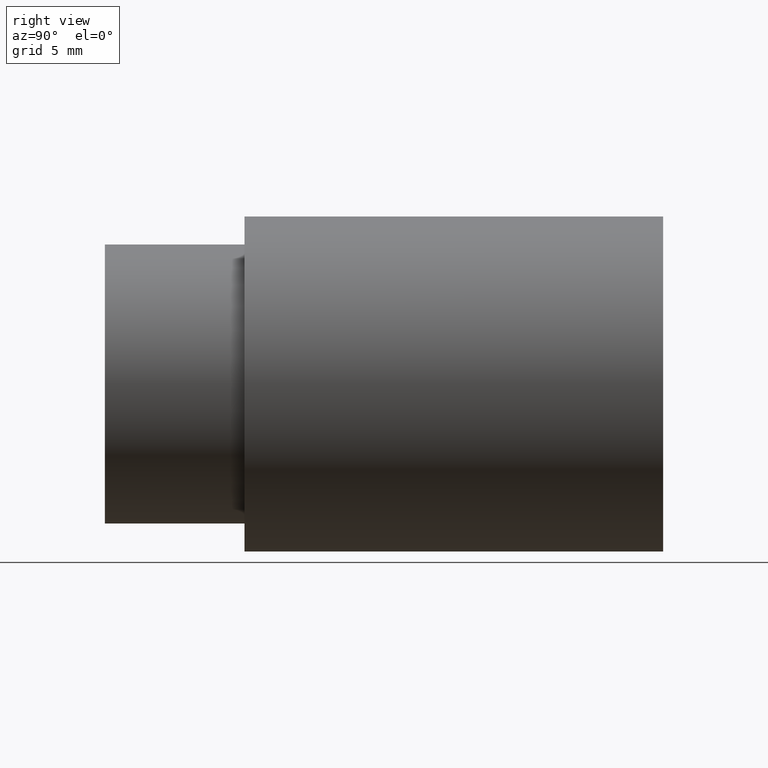
[diagram: clean part render]
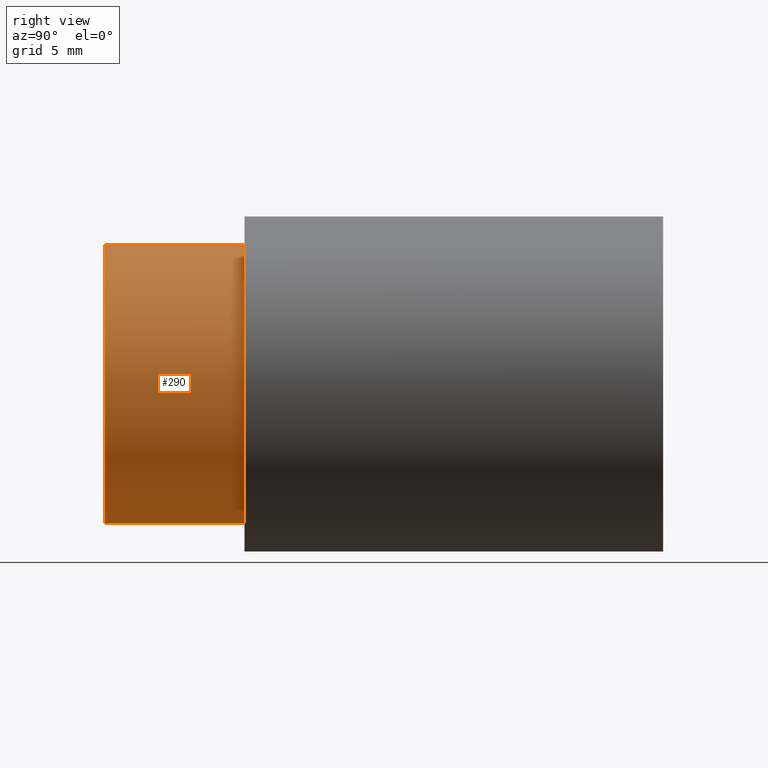
[diagram: same view with one face highlighted and labeled with its STEP entity id]
A machine part, right view. The second image highlights one B-rep face of the part: STEP entity #290.
In plain terms, the highlighted cylindrical surface (partial cylindrical patch) has radius 6.35 mm, axis along (-0, -1, -0).
Its self-contained STEP definition (entity closure, byte-faithful):
#8 = VERTEX_POINT ( 'NONE', #65 ) ;
#10 = AXIS2_PLACEMENT_3D ( 'NONE', #99, #129, #75 ) ;
#17 = EDGE_CURVE ( 'NONE', #245, #248, #197, .T. ) ;
#40 = DIRECTION ( 'NONE',  ( -0.0000000000000000000, -1.000000000000000000, -0.0000000000000000000 ) ) ;
#51 = DIRECTION ( 'NONE',  ( 0.0000000000000000000, 0.0000000000000000000, -1.000000000000000000 ) ) ;
#63 = DIRECTION ( 'NONE',  ( -0.0000000000000000000, -1.000000000000000000, -0.0000000000000000000 ) ) ;
#64 = CARTESIAN_POINT ( 'NONE',  ( 3.061616997868383000E-017, -3.061616997868383000E-017, 0.2500000000000000000 ) ) ;
#65 = CARTESIAN_POINT ( 'NONE',  ( 0.0000000000000000000, -3.061616997868383000E-017, -0.2500000000000000000 ) ) ;
#69 = CARTESIAN_POINT ( 'NONE',  ( 0.0000000000000000000, -3.061616997868383000E-017, 0.0000000000000000000 ) ) ;
#72 = CARTESIAN_POINT ( 'NONE',  ( 0.0000000000000000000, 0.0000000000000000000, -0.2500000000000000000 ) ) ;
#73 = CARTESIAN_POINT ( 'NONE',  ( 0.0000000000000000000, 0.2499999999999999700, -0.2500000000000000000 ) ) ;
#75 = DIRECTION ( 'NONE',  ( 0.0000000000000000000, 0.0000000000000000000, -1.000000000000000000 ) ) ;
#82 = DIRECTION ( 'NONE',  ( -0.0000000000000000000, -1.000000000000000000, -0.0000000000000000000 ) ) ;
#99 = CARTESIAN_POINT ( 'NONE',  ( 0.0000000000000000000, 0.0000000000000000000, 0.0000000000000000000 ) ) ;
#117 = DIRECTION ( 'NONE',  ( 0.0000000000000000000, 0.0000000000000000000, -1.000000000000000000 ) ) ;
#125 = CARTESIAN_POINT ( 'NONE',  ( 3.061616997868383000E-017, 0.2499999999999999700, 0.2500000000000000000 ) ) ;
#129 = DIRECTION ( 'NONE',  ( -0.0000000000000000000, -1.000000000000000000, -0.0000000000000000000 ) ) ;
#131 = CARTESIAN_POINT ( 'NONE',  ( 0.0000000000000000000, 0.2499999999999999700, 0.0000000000000000000 ) ) ;
#136 = DIRECTION ( 'NONE',  ( -0.0000000000000000000, -1.000000000000000000, -0.0000000000000000000 ) ) ;
#137 = CARTESIAN_POINT ( 'NONE',  ( 3.061616997868383000E-017, 0.0000000000000000000, 0.2500000000000000000 ) ) ;
#167 = FACE_OUTER_BOUND ( 'NONE', #303, .T. ) ;
#172 = CYLINDRICAL_SURFACE ( 'NONE', #10, 0.2500000000000000000 ) ;
#193 = ORIENTED_EDGE ( 'NONE', *, *, #271, .F. ) ;
#197 = LINE ( 'NONE', #137, #198 ) ;
#198 = VECTOR ( 'NONE', #40, 39.37007874015748100 ) ;
#204 = AXIS2_PLACEMENT_3D ( 'NONE', #69, #136, #51 ) ;
#211 = AXIS2_PLACEMENT_3D ( 'NONE', #131, #82, #117 ) ;
#215 = VECTOR ( 'NONE', #63, 39.37007874015748100 ) ;
#217 = CIRCLE ( 'NONE', #204, 0.2500000000000000000 ) ;
#219 = LINE ( 'NONE', #72, #215 ) ;
#224 = CIRCLE ( 'NONE', #211, 0.2500000000000000000 ) ;
#234 = ORIENTED_EDGE ( 'NONE', *, *, #17, .T. ) ;
#236 = ORIENTED_EDGE ( 'NONE', *, *, #278, .T. ) ;
#244 = ORIENTED_EDGE ( 'NONE', *, *, #270, .F. ) ;
#245 = VERTEX_POINT ( 'NONE', #125 ) ;
#246 = VERTEX_POINT ( 'NONE', #73 ) ;
#248 = VERTEX_POINT ( 'NONE', #64 ) ;
#270 = EDGE_CURVE ( 'NONE', #8, #248, #217, .T. ) ;
#271 = EDGE_CURVE ( 'NONE', #246, #8, #219, .T. ) ;
#278 = EDGE_CURVE ( 'NONE', #246, #245, #224, .T. ) ;
#290 = ADVANCED_FACE ( 'NONE', ( #167 ), #172, .T. ) ;
#303 = EDGE_LOOP ( 'NONE', ( #236, #234, #244, #193 ) ) ;